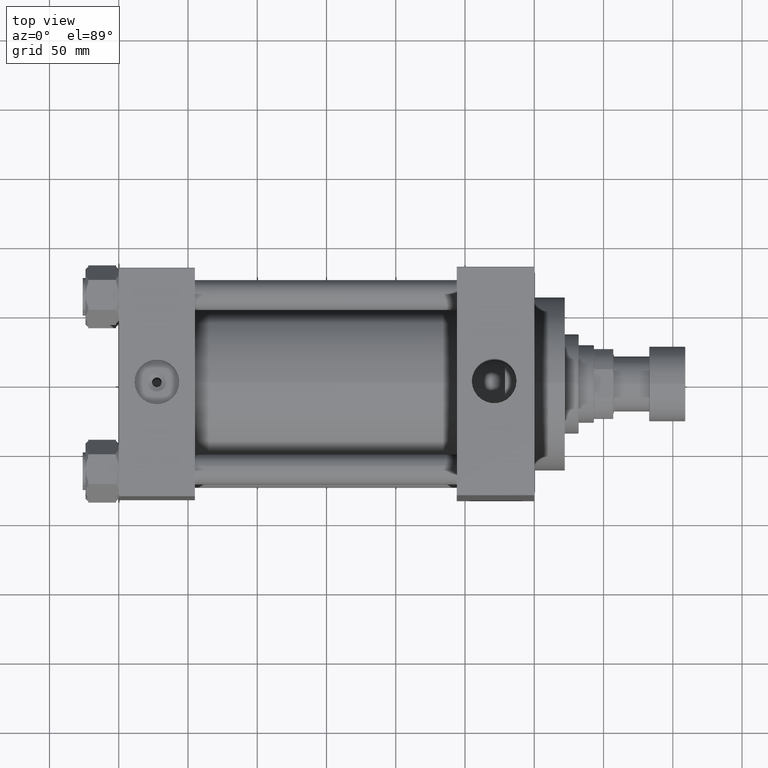
[diagram: clean part render]
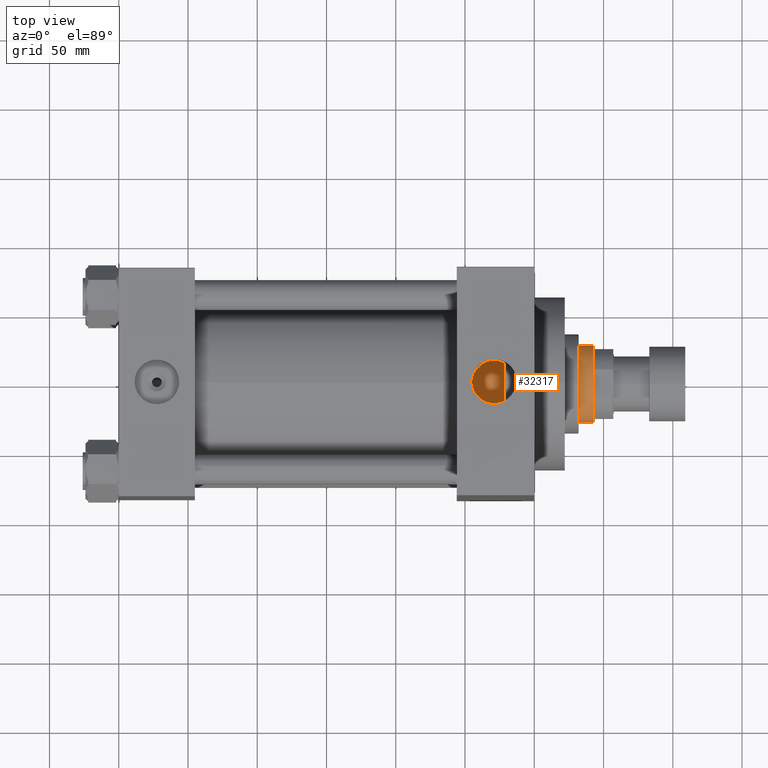
[diagram: same view with one face highlighted and labeled with its STEP entity id]
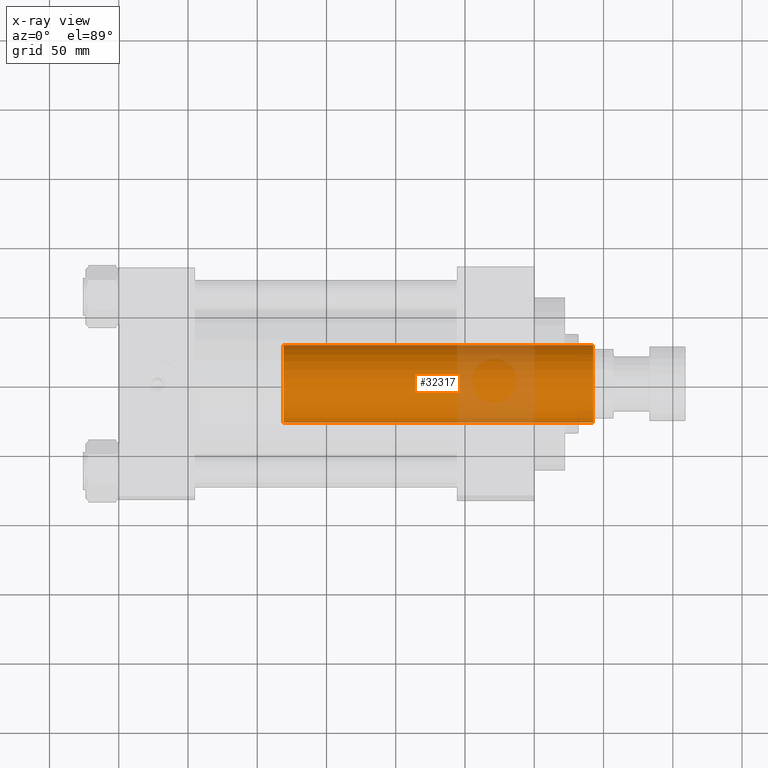
[diagram: x-ray of the same camera — body ghosted, the highlighted face saturated]
A machine part, top view. The second image highlights one B-rep face of the part: STEP entity #32317.
The next image is the same camera in x-ray: the body ghosted, the highlighted face saturated — about 19% of this face is hidden behind the body in this view.
In plain terms, the highlighted cylindrical surface (partial cylindrical patch) has radius 28 mm, axis along (-1, 0, 0).
Its self-contained STEP definition (entity closure, byte-faithful):
#3503 = VERTEX_POINT ( 'NONE', #26995 ) ;
#3749 = CIRCLE ( 'NONE', #11538, 28.00000000000000000 ) ;
#4705 = DIRECTION ( 'NONE',  ( 0.000000000000000000, 0.000000000000000000, 1.000000000000000000 ) ) ;
#5124 = EDGE_LOOP ( 'NONE', ( #14687, #24745, #5681, #24021 ) ) ;
#5681 = ORIENTED_EDGE ( 'NONE', *, *, #14551, .T. ) ;
#8127 = CIRCLE ( 'NONE', #12800, 28.00000000000000000 ) ;
#8203 = LINE ( 'NONE', #13065, #17400 ) ;
#8677 = DIRECTION ( 'NONE',  ( -0.000000000000000000, -0.000000000000000000, -1.000000000000000000 ) ) ;
#8799 = DIRECTION ( 'NONE',  ( 0.000000000000000000, 0.000000000000000000, -1.000000000000000000 ) ) ;
#9773 = CARTESIAN_POINT ( 'NONE',  ( 0.000000000000000000, 0.000000000000000000, 287.5000000000000000 ) ) ;
#9921 = DIRECTION ( 'NONE',  ( -0.000000000000000000, -0.000000000000000000, -1.000000000000000000 ) ) ;
#11100 = VERTEX_POINT ( 'NONE', #14199 ) ;
#11538 = AXIS2_PLACEMENT_3D ( 'NONE', #9773, #8799, #24184 ) ;
#12018 = DIRECTION ( 'NONE',  ( 1.000000000000000000, 0.000000000000000000, 0.000000000000000000 ) ) ;
#12800 = AXIS2_PLACEMENT_3D ( 'NONE', #31070, #4705, #12018 ) ;
#13065 = CARTESIAN_POINT ( 'NONE',  ( -28.00000000000000000, 0.000000000000000000, 288.0000000000000568 ) ) ;
#14199 = CARTESIAN_POINT ( 'NONE',  ( -28.00000000000000000, 0.000000000000000000, 64.00000000000000000 ) ) ;
#14551 = EDGE_CURVE ( 'NONE', #3503, #11100, #8203, .T. ) ;
#14687 = ORIENTED_EDGE ( 'NONE', *, *, #39994, .F. ) ;
#15799 = CARTESIAN_POINT ( 'NONE',  ( 28.00000000000000000, 3.429011037612589276E-15, 288.0000000000000568 ) ) ;
#16051 = LINE ( 'NONE', #15799, #47939 ) ;
#17400 = VECTOR ( 'NONE', #8677, 1000.000000000000000 ) ;
#17721 = FACE_OUTER_BOUND ( 'NONE', #5124, .T. ) ;
#20908 = CARTESIAN_POINT ( 'NONE',  ( 0.000000000000000000, 0.000000000000000000, 288.0000000000000568 ) ) ;
#21293 = VERTEX_POINT ( 'NONE', #22757 ) ;
#22757 = CARTESIAN_POINT ( 'NONE',  ( 28.00000000000000000, 3.429011037612589276E-15, 287.5000000000000000 ) ) ;
#24021 = ORIENTED_EDGE ( 'NONE', *, *, #40456, .T. ) ;
#24184 = DIRECTION ( 'NONE',  ( 1.000000000000000000, 0.000000000000000000, 0.000000000000000000 ) ) ;
#24745 = ORIENTED_EDGE ( 'NONE', *, *, #26400, .T. ) ;
#26400 = EDGE_CURVE ( 'NONE', #21293, #3503, #3749, .T. ) ;
#26995 = CARTESIAN_POINT ( 'NONE',  ( -28.00000000000000000, 0.000000000000000000, 287.5000000000000000 ) ) ;
#28728 = DIRECTION ( 'NONE',  ( -1.000000000000000000, 0.000000000000000000, 0.000000000000000000 ) ) ;
#31070 = CARTESIAN_POINT ( 'NONE',  ( 0.000000000000000000, 0.000000000000000000, 64.00000000000000000 ) ) ;
#32317 = ADVANCED_FACE ( 'NONE', ( #17721 ), #47535, .T. ) ;
#36695 = CARTESIAN_POINT ( 'NONE',  ( 28.00000000000000000, 3.429011037612589276E-15, 64.00000000000000000 ) ) ;
#38124 = AXIS2_PLACEMENT_3D ( 'NONE', #20908, #9921, #28728 ) ;
#39632 = VERTEX_POINT ( 'NONE', #36695 ) ;
#39994 = EDGE_CURVE ( 'NONE', #21293, #39632, #16051, .T. ) ;
#40456 = EDGE_CURVE ( 'NONE', #11100, #39632, #8127, .T. ) ;
#41940 = DIRECTION ( 'NONE',  ( -0.000000000000000000, -0.000000000000000000, -1.000000000000000000 ) ) ;
#47535 = CYLINDRICAL_SURFACE ( 'NONE', #38124, 28.00000000000000000 ) ;
#47939 = VECTOR ( 'NONE', #41940, 1000.000000000000000 ) ;